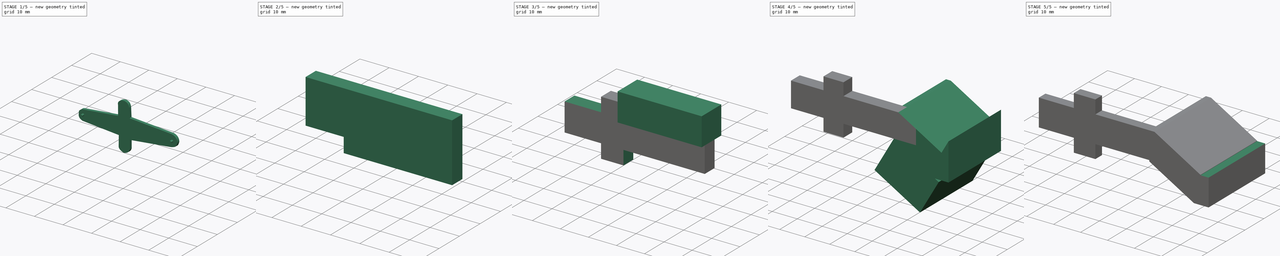
[diagram: build sequence overview — one tinted view per stage of 5, left to right]
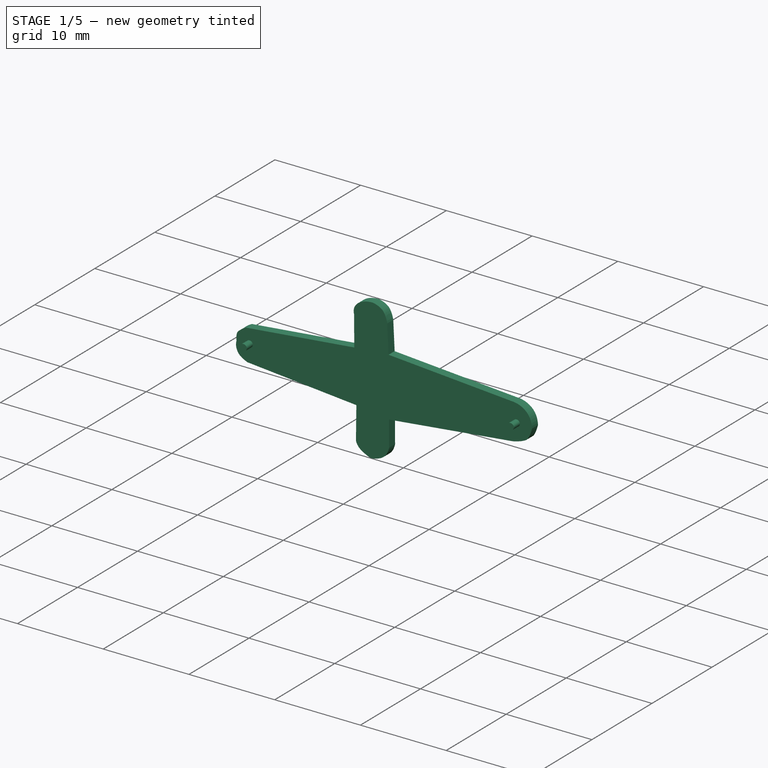
[diagram: stage 1 of 5 — iso view after this stage's code; geometry added in this stage tinted green]
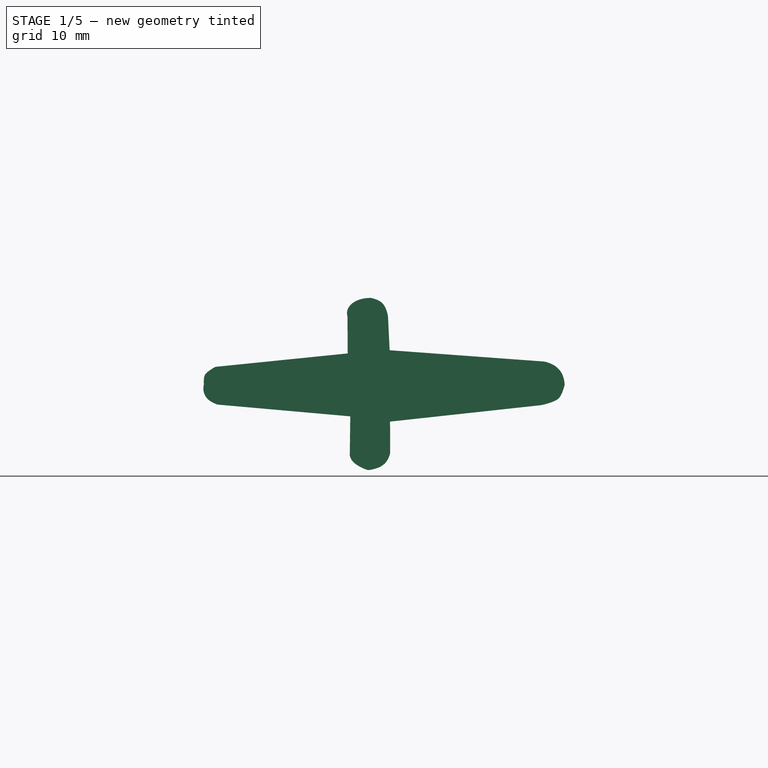
[diagram: stage 1 of 5 — front view after this stage's code; geometry added in this stage tinted green]
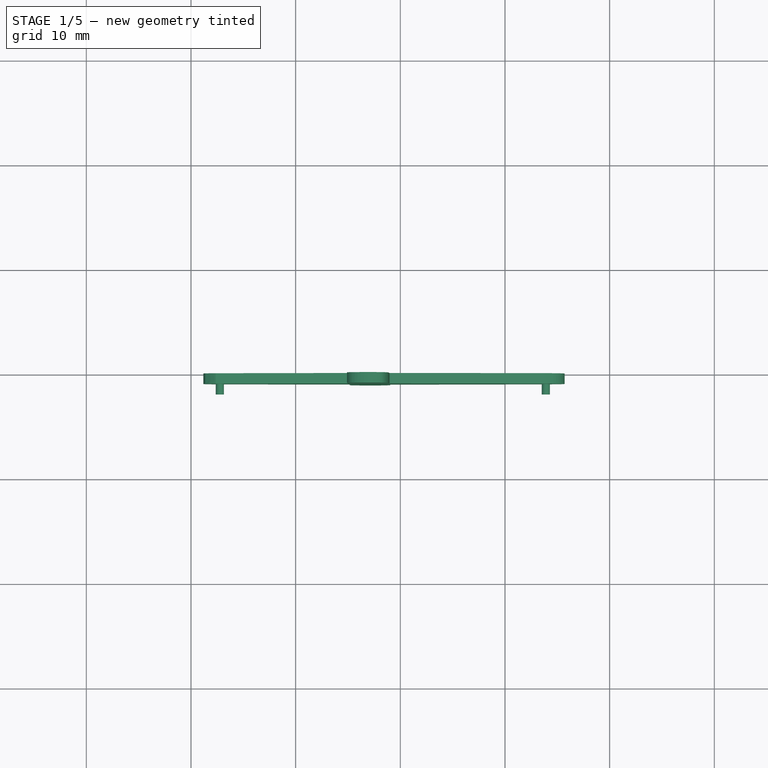
[diagram: stage 1 of 5 — top view after this stage's code; geometry added in this stage tinted green]
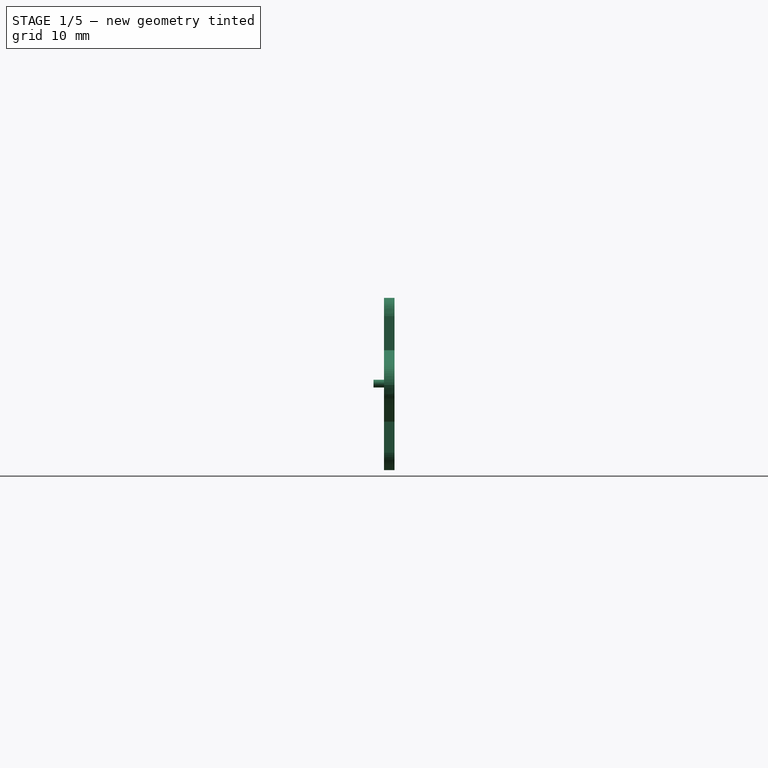
[diagram: stage 1 of 5 — right view after this stage's code; geometry added in this stage tinted green]
FCSTD DOCUMENT  (FreeCAD 0.20R29177 +233 (Git))
Label: pieza_union_sin_aspa
License: Creative Commons Attribution-ShareAlike
LicenseURL: http://creativecommons.org/licenses/by-sa/4.0/
objects: Part::Box×10, Part::Cut×10, Part::Extrusion×4, Part::Feature×3, Part::Fuse×2, Sketcher::SketchObject×1, Part::MultiFuse×1
note: 31 computed .brp shape members not serialized (recipe doc carries the construction recipe); baked Part::Feature solids carry a one-line shape summary decoded from their .brp

FEATURE [Part::Feature] circle1173
  Placement = pos=(80.8508,-13.1887,0) rot=(0,0,1;0rad)
  shape: bbox 0.8152 x 0.9368 x 1.995e-06 mm, 0 faces, 0 solids (baked)
FEATURE [Part::Extrusion] Extrude006
  Base = -> circle1173
  Dir = (0,0,1)
  DirMode = 2
  FaceMakerClass = Part::FaceMakerBullseye
  LengthFwd = 2
  LengthRev = 0
  Placement = pos=(22.5,0,0) rot=(0,0,1;0rad)
  Solid = true
  Symmetric = false
FEATURE [Part::Feature] circle1174
  Placement = pos=(80.8508,-10.0656,0) rot=(0,0,1;0rad)
  shape: bbox 0.8152 x 0.9368 x 1.995e-06 mm, 0 faces, 0 solids (baked)
FEATURE [Part::Extrusion] Extrude005
  Base = -> circle1174
  Dir = (0,0,1)
  DirMode = 2
  FaceMakerClass = Part::FaceMakerBullseye
  LengthFwd = 2
  LengthRev = 0
  Placement = pos=(22.5,0,0) rot=(0,0,1;0rad)
  Solid = true
  Symmetric = false
FEATURE [Part::Feature] path284
  shape: bbox 16.5 x 34.62 x 2e-07 mm, 0 faces, 0 solids (baked)
FEATURE [Part::Extrusion] Extrude004
  Base = -> path284
  Dir = (0,0,1)
  DirMode = 0
  FaceMakerClass = Part::FaceMakerBullseye
  LengthFwd = 1
  LengthRev = 0
  Solid = true
  Symmetric = false
FEATURE [Part::Fuse] Fusion002
  Base = -> Extrude004
  Tool = -> Extrude005
FEATURE [Part::Fuse] Fusion003
  Base = -> Fusion002
  Placement = pos=(46,2.9e-14,98) rot=(0.57735,0.57735,-0.57735;2.0944rad)
  Tool = -> Extrude006
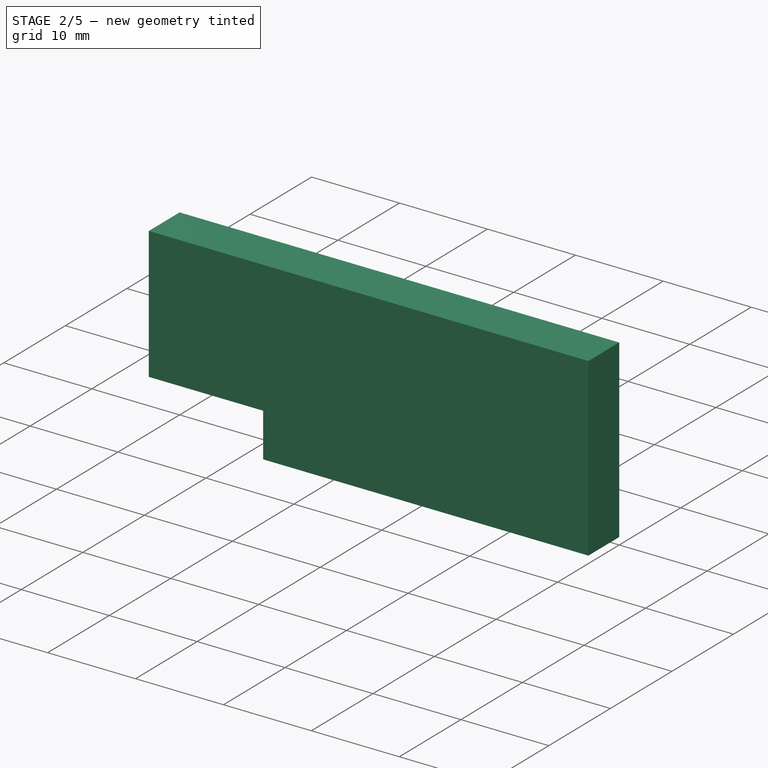
[diagram: stage 2 of 5 — iso view after this stage's code; geometry added in this stage tinted green]
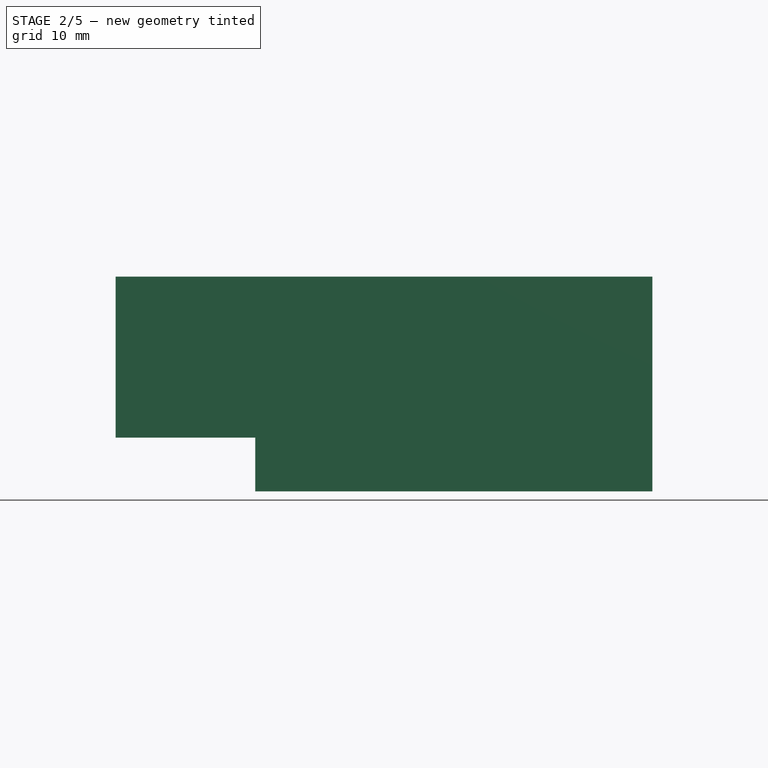
[diagram: stage 2 of 5 — front view after this stage's code; geometry added in this stage tinted green]
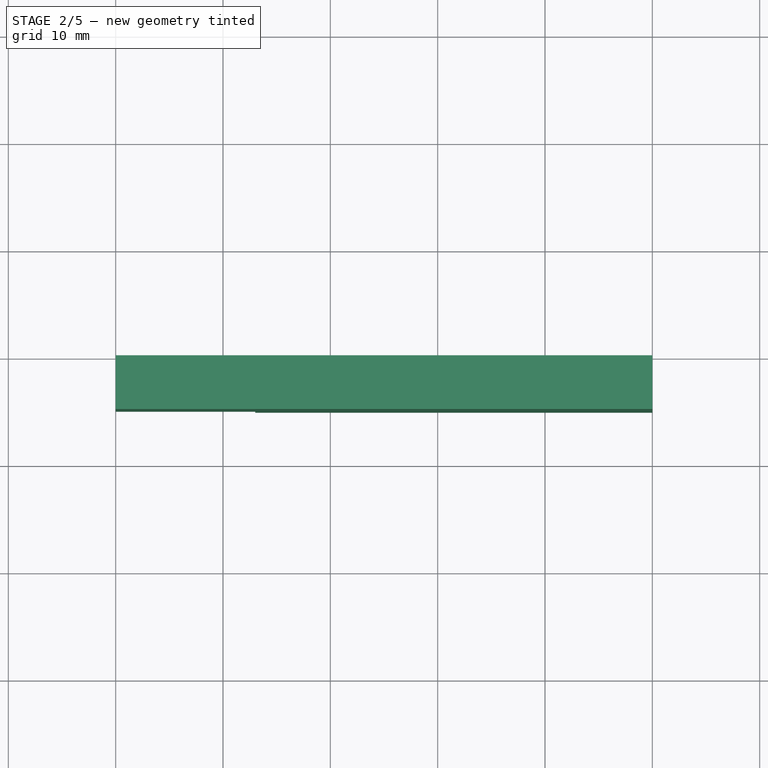
[diagram: stage 2 of 5 — top view after this stage's code; geometry added in this stage tinted green]
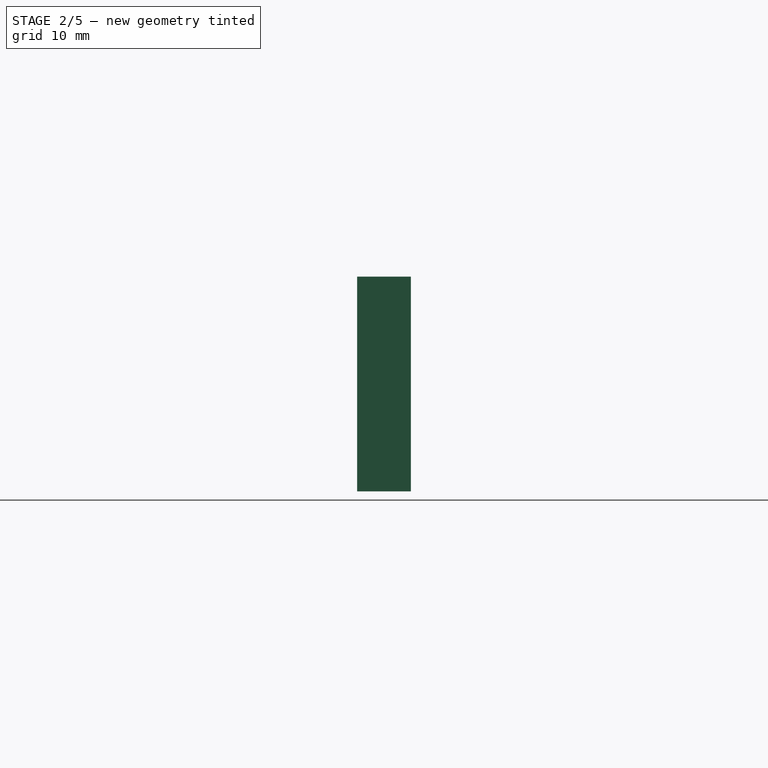
[diagram: stage 2 of 5 — right view after this stage's code; geometry added in this stage tinted green]
FEATURE [Part::Box] Box001  label="Cubo001"
  AttacherType = Attacher::AttachEngine3D
  Height = 30
  Length = 30
  Placement = pos=(-44,-10,19) rot=(0,0,1;0rad)
  Width = 30
FEATURE [Part::Box] Box002  label="Cubo002"
  AttacherType = Attacher::AttachEngine3D
  Height = 10
  Length = 15
  Placement = pos=(-82,-17,15) rot=(0,0,1;0rad)
  Width = 10
FEATURE [Sketcher::SketchObject] Sketch003
  FullyConstrained = true
  MapMode = 2
  sketch-geometry (6):
    g0: LineSegment StartX=0 StartY=0 StartZ=0 EndX=0 EndY=-5 EndZ=0
    g1: LineSegment StartX=0 StartY=-5 StartZ=0 EndX=50 EndY=-5 EndZ=0
    g2: LineSegment StartX=50 StartY=-5 StartZ=0 EndX=50 EndY=15 EndZ=0
    g3: LineSegment StartX=50 StartY=15 StartZ=0 EndX=45 EndY=15 EndZ=0
    g4: LineSegment StartX=45 StartY=15 StartZ=0 EndX=45 EndY=0 EndZ=0
    g5: LineSegment StartX=45 StartY=0 StartZ=0 EndX=0 EndY=0 EndZ=0
  constraints (17):
    c: Coincident(g-1,g0)
    c: PointOnObject(g0,g-2)
    c: Coincident(g0,g1)
    c: Horizontal(g1)
    c: Coincident(g1,g2)
    c: Vertical(g2)
    c: Coincident(g2,g3)
    c: Horizontal(g3)
    c: Coincident(g3,g4)
    c: PointOnObject(g4,g-1)
    c: Vertical(g4)
    c: Coincident(g4,g5)
    c: Coincident(g5,g0)
    c: Distance(g1) = 50
    c: Distance(g0) = 5
    c: Distance(g3) = 5
    c: Distance(g4) = 15
FEATURE [Part::Extrusion] Extrude007
  Base = -> Sketch003
  Dir = (0,0,1)
  DirMode = 2
  FaceMakerClass = Part::FaceMakerBullseye
  LengthFwd = 20
  LengthRev = 0
  Solid = true
  Symmetric = false
FEATURE [Part::Cut] Cut003  label="agarre"
  Base = -> Extrude007
  Placement = pos=(-80,-10,20) rot=(0,0,1;0rad)
  Tool = -> Fusion003
FEATURE [Part::Cut] Cut004
  Base = -> Cut003
  Tool = -> Box001
FEATURE [Part::Cut] Cut005
  Base = -> Cut004
  Tool = -> Box002
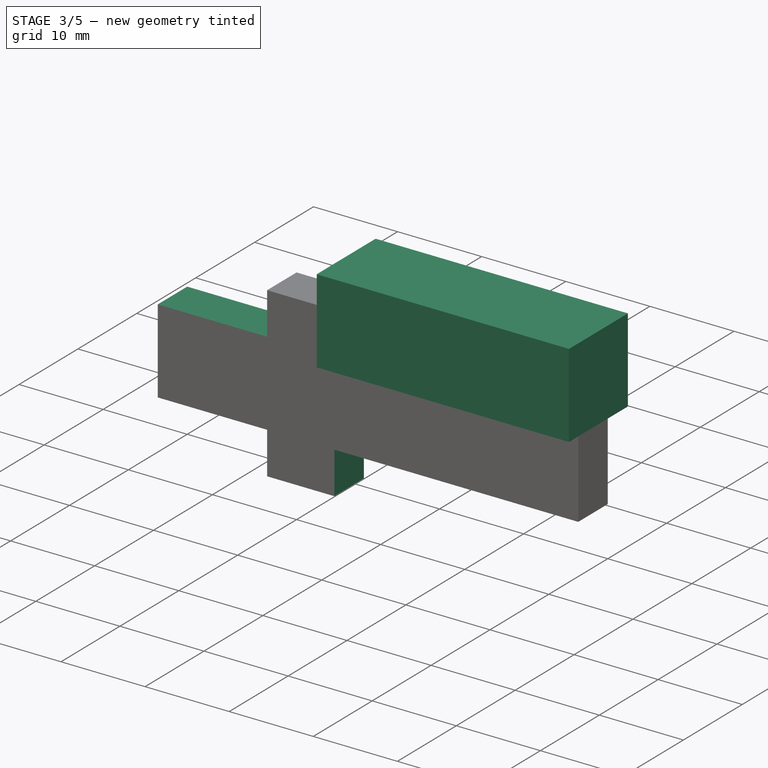
[diagram: stage 3 of 5 — iso view after this stage's code; geometry added in this stage tinted green]
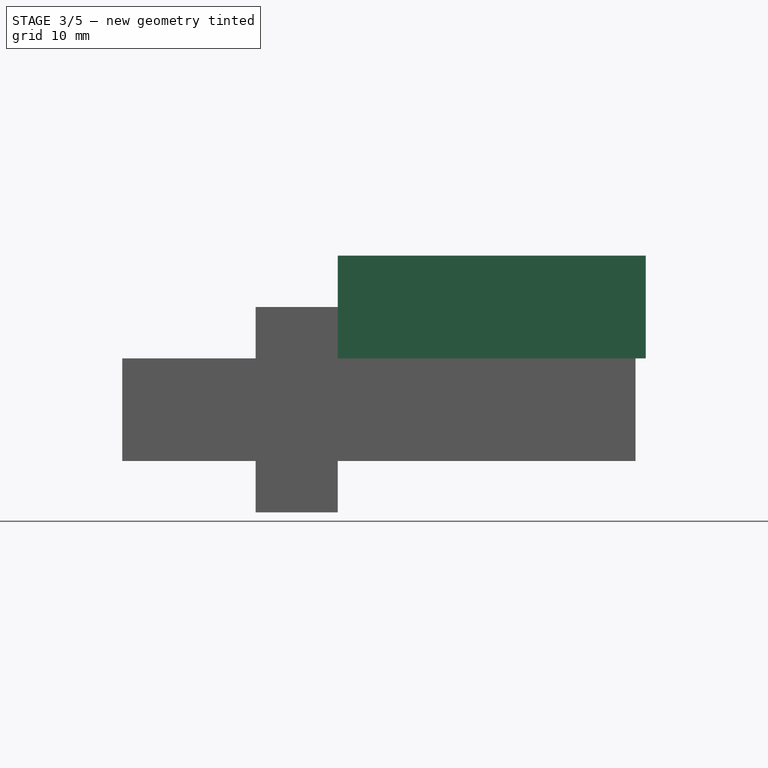
[diagram: stage 3 of 5 — front view after this stage's code; geometry added in this stage tinted green]
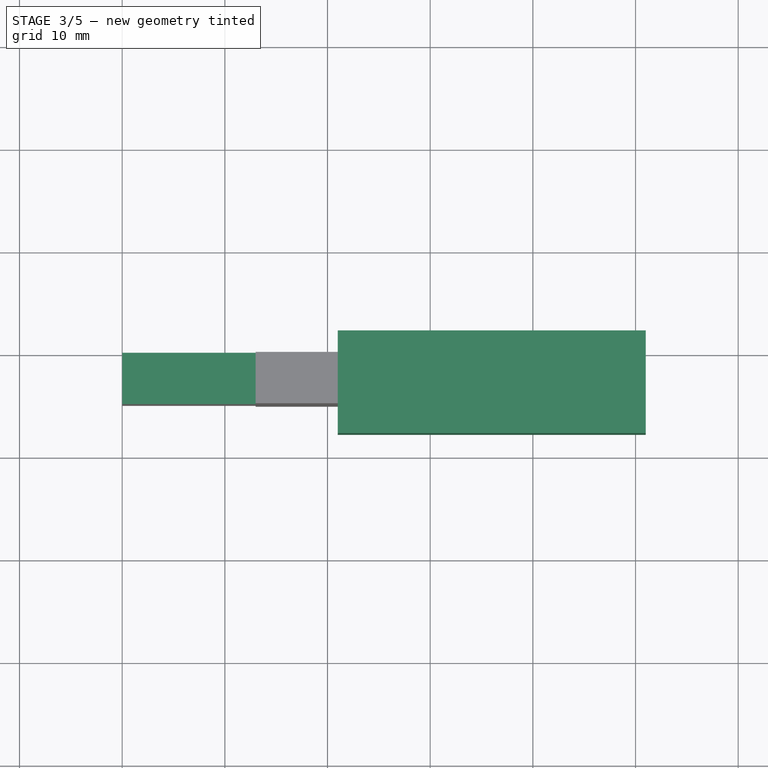
[diagram: stage 3 of 5 — top view after this stage's code; geometry added in this stage tinted green]
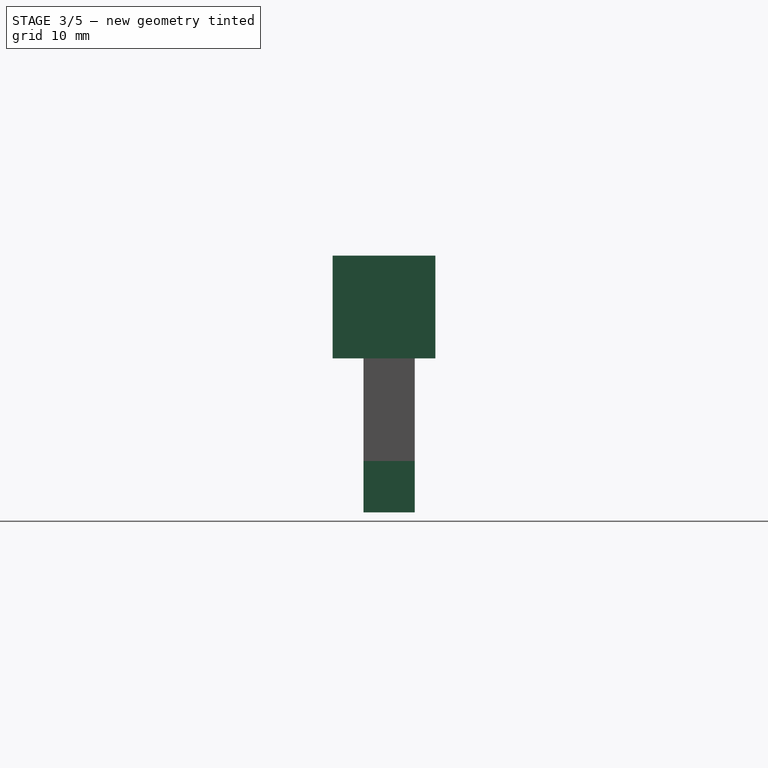
[diagram: stage 3 of 5 — right view after this stage's code; geometry added in this stage tinted green]
FEATURE [Part::Box] Box003  label="Cubo003"
  AttacherType = Attacher::AttachEngine3D
  Height = 10
  Length = 15
  Placement = pos=(-82,-17,35) rot=(0,0,1;0rad)
  Width = 10
FEATURE [Part::Box] Box004  label="Cubo004"
  AttacherType = Attacher::AttachEngine3D
  Height = 10
  Length = 30
  Placement = pos=(-59,-18,15) rot=(0,0,1;0rad)
  Width = 10
FEATURE [Part::Box] Box005  label="Cubo005"
  AttacherType = Attacher::AttachEngine3D
  Height = 10
  Length = 30
  Placement = pos=(-59,-18,35) rot=(0,0,1;0rad)
  Width = 10
FEATURE [Part::Cut] Cut006
  Base = -> Cut005
  Tool = -> Box003
FEATURE [Part::Cut] Cut007
  Base = -> Cut006
  Tool = -> Box004
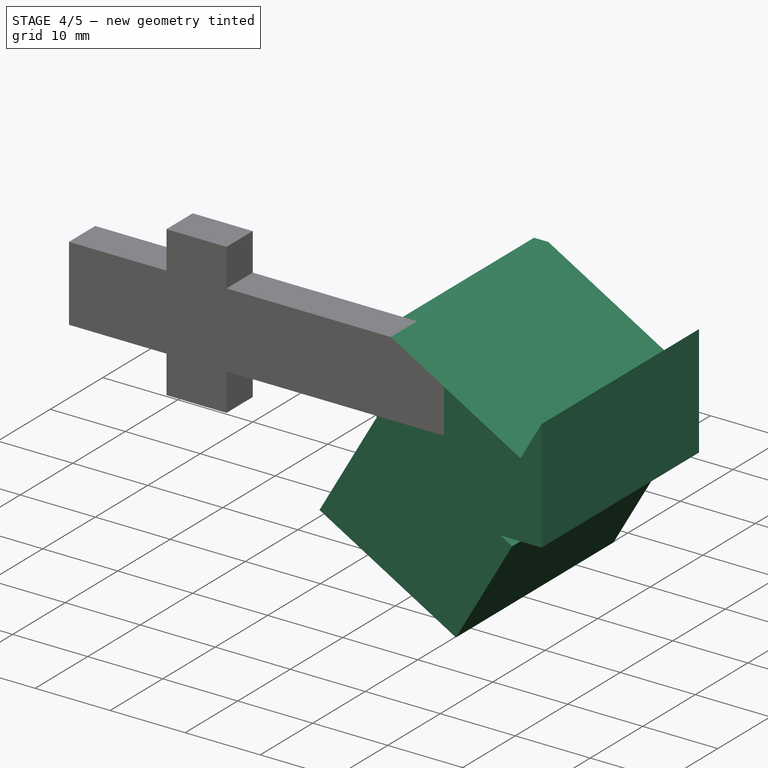
[diagram: stage 4 of 5 — iso view after this stage's code; geometry added in this stage tinted green]
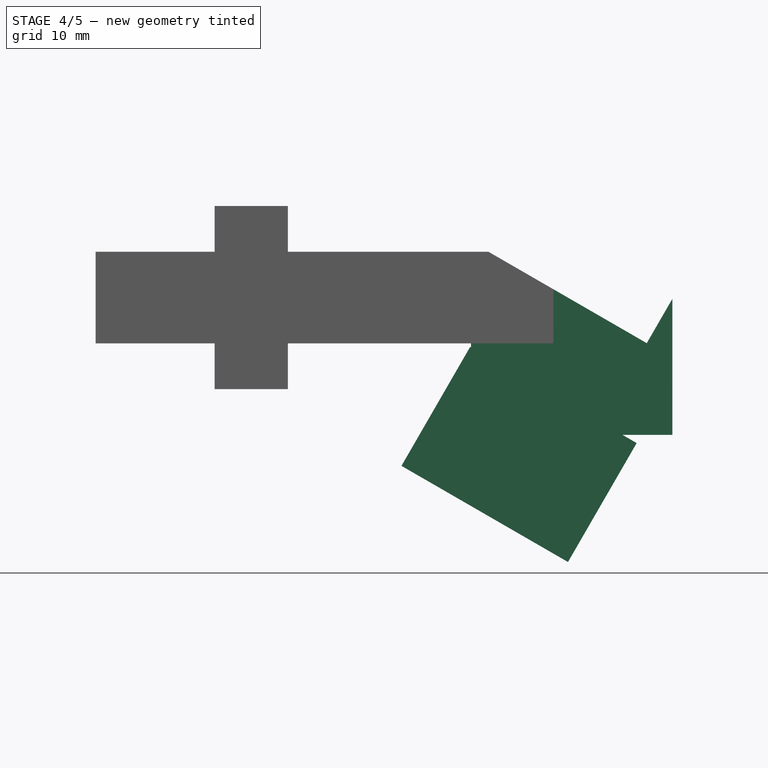
[diagram: stage 4 of 5 — front view after this stage's code; geometry added in this stage tinted green]
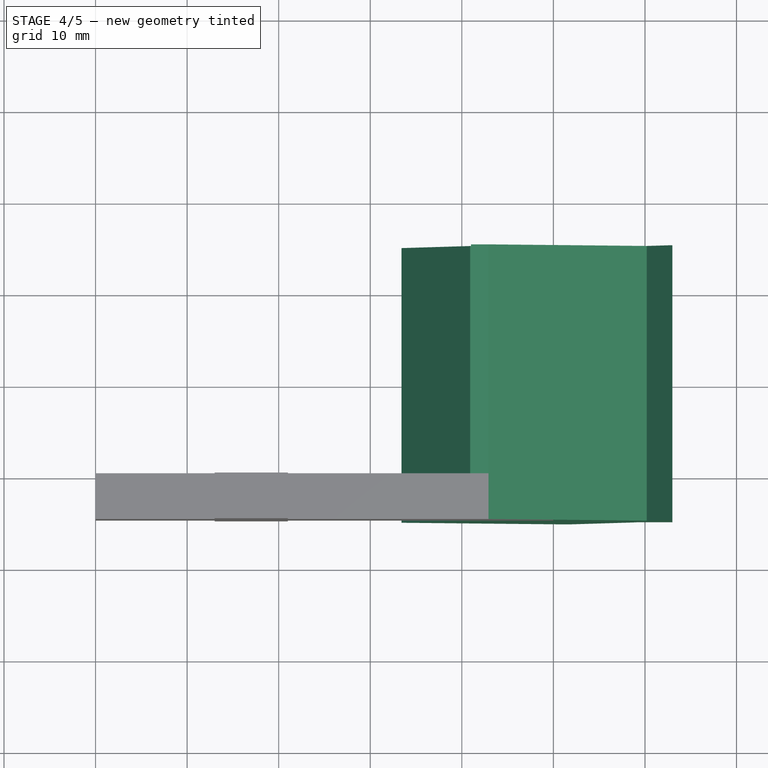
[diagram: stage 4 of 5 — top view after this stage's code; geometry added in this stage tinted green]
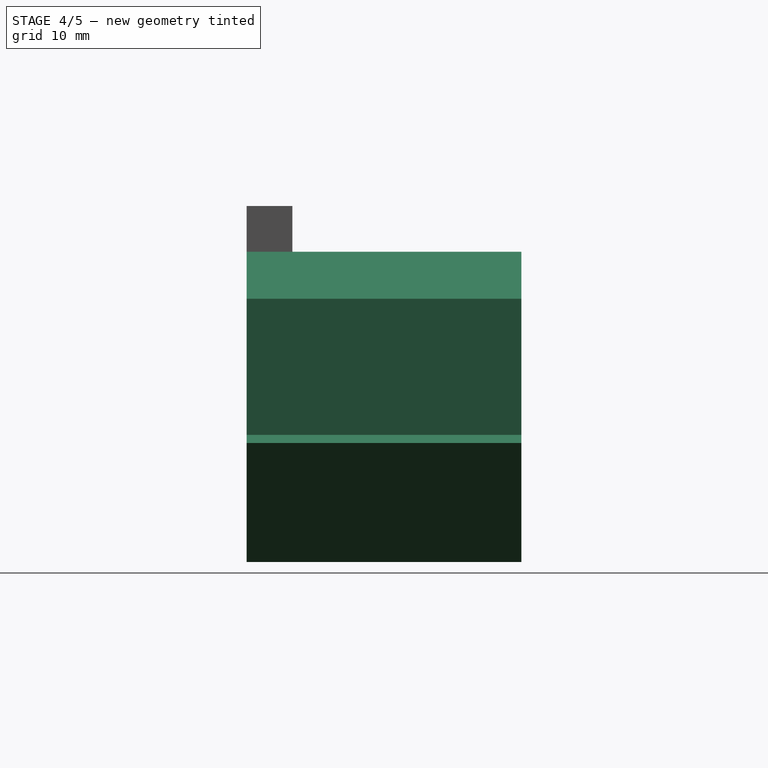
[diagram: stage 4 of 5 — right view after this stage's code; geometry added in this stage tinted green]
FEATURE [Part::Box] Box006  label="Cubo006"
  AttacherType = Attacher::AttachEngine3D
  Height = 20
  Length = 22
  Placement = pos=(-39,-15,15) rot=(0,0,1;0rad)
  Width = 30
FEATURE [Part::Box] Box007  label="Cubo007"
  AttacherType = Attacher::AttachEngine3D
  Height = 15
  Length = 21
  Placement = pos=(-37.99,-15,35.52) rot=(0,1,0;0.523599rad)
  Width = 30
FEATURE [Part::Box] Box008  label="Cubo008"
  AttacherType = Attacher::AttachEngine3D
  Height = 15
  Length = 21
  Placement = pos=(-46.5929,-15,11.6194) rot=(0,1,0;0.523599rad)
  Width = 30
FEATURE [Part::Cut] Cut008
  Base = -> Cut007
  Tool = -> Box005
FEATURE [Part::MultiFuse] Fusion004
  Shapes = -> [Cut008,Box006]
FEATURE [Part::Cut] Cut009
  Base = -> Fusion004
  Tool = -> Box007
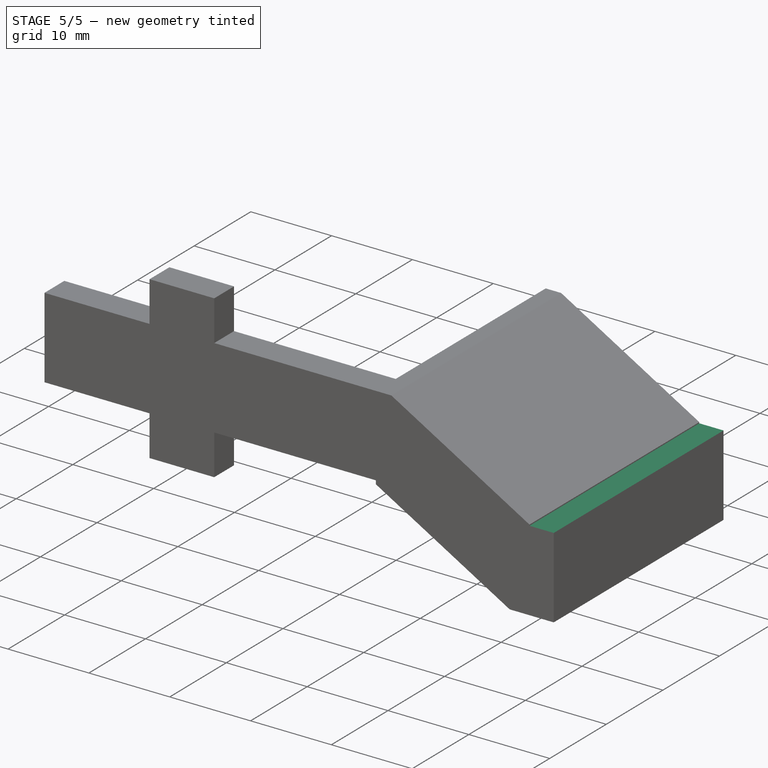
[diagram: stage 5 of 5 — iso view after this stage's code; geometry added in this stage tinted green]
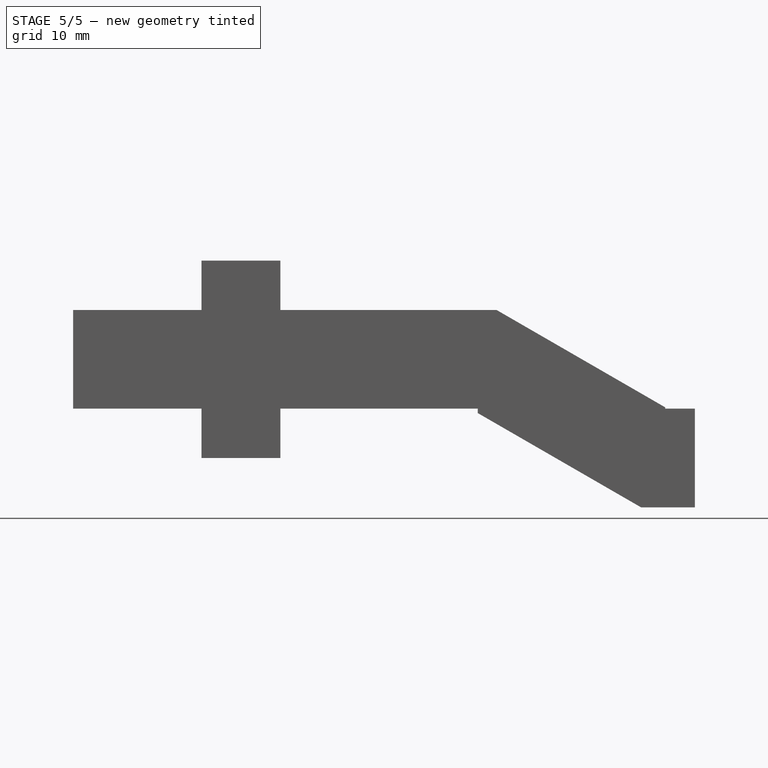
[diagram: stage 5 of 5 — front view after this stage's code; geometry added in this stage tinted green]
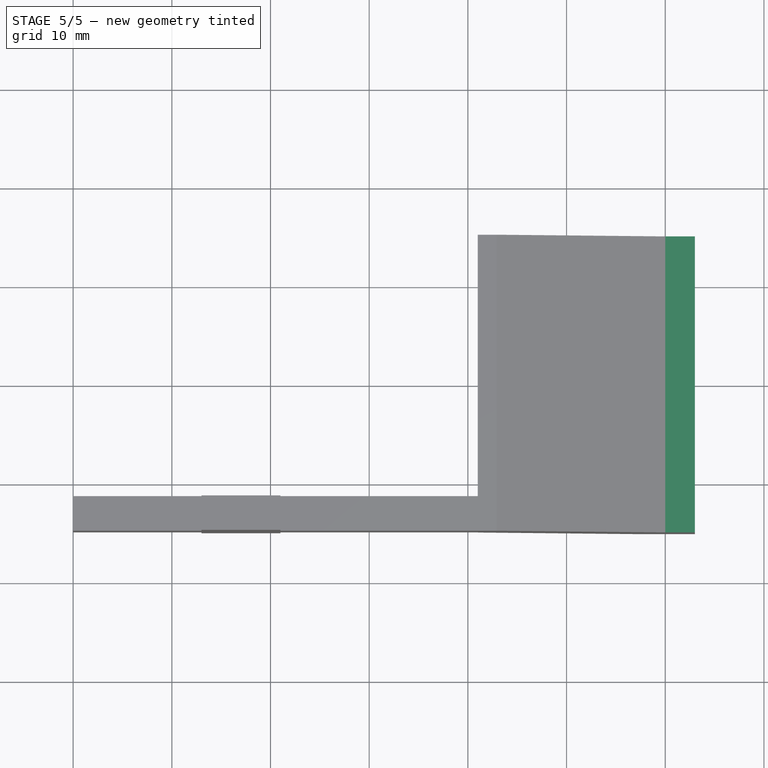
[diagram: stage 5 of 5 — top view after this stage's code; geometry added in this stage tinted green]
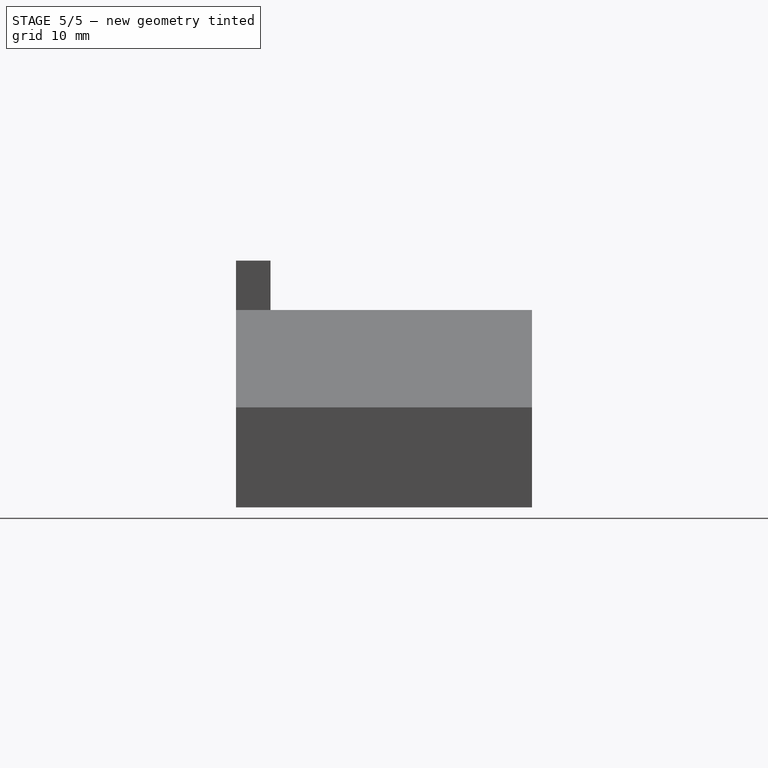
[diagram: stage 5 of 5 — right view after this stage's code; geometry added in this stage tinted green]
FEATURE [Part::Box] Box009  label="Cubo009"
  AttacherType = Attacher::AttachEngine3D
  Height = 10
  Length = 10
  Placement = pos=(-20,-17,25) rot=(0,0,1;0rad)
  Width = 40
FEATURE [Part::Box] Box010  label="Cubo010"
  AttacherType = Attacher::AttachEngine3D
  Height = 24
  Length = 43
  Placement = pos=(-82,-11.5,17.5) rot=(0,0,1;0rad)
  Width = 4
FEATURE [Part::Cut] Cut010
  Base = -> Cut009
  Tool = -> Box008
FEATURE [Part::Cut] Cut011  label="agarre001"
  Base = -> Cut010
  Tool = -> Box009
FEATURE [Part::Cut] Cut012
  Base = -> Cut011
  Tool = -> Box010
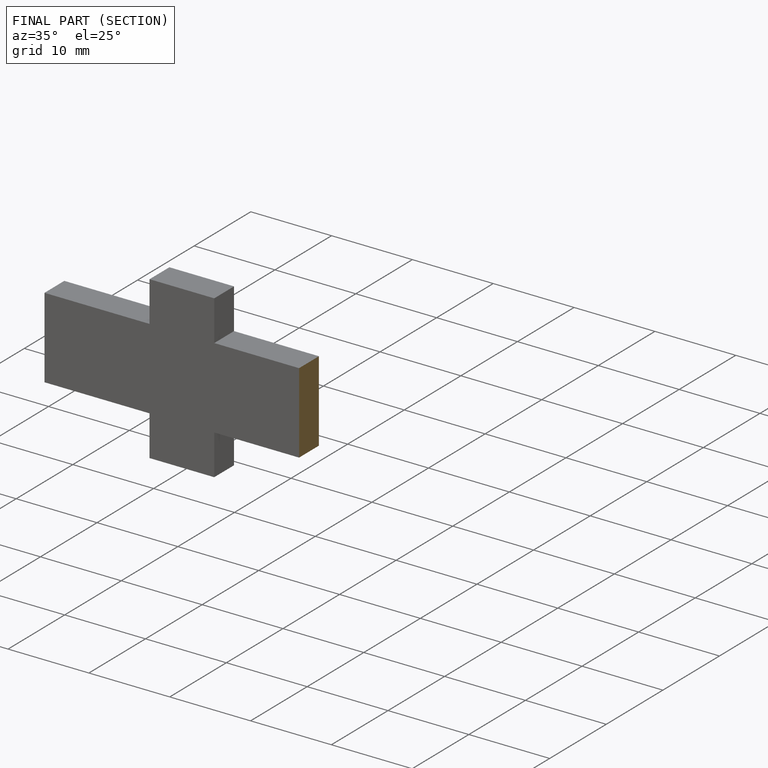
[diagram: finished part — half-section view (interior)]
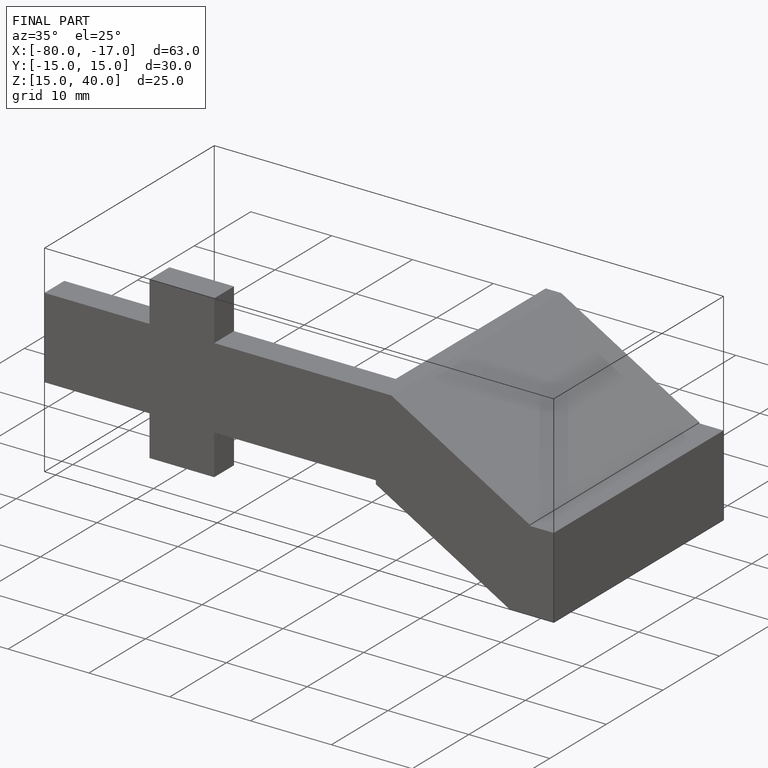
[diagram: finished part — iso view with bounding-box wireframe]
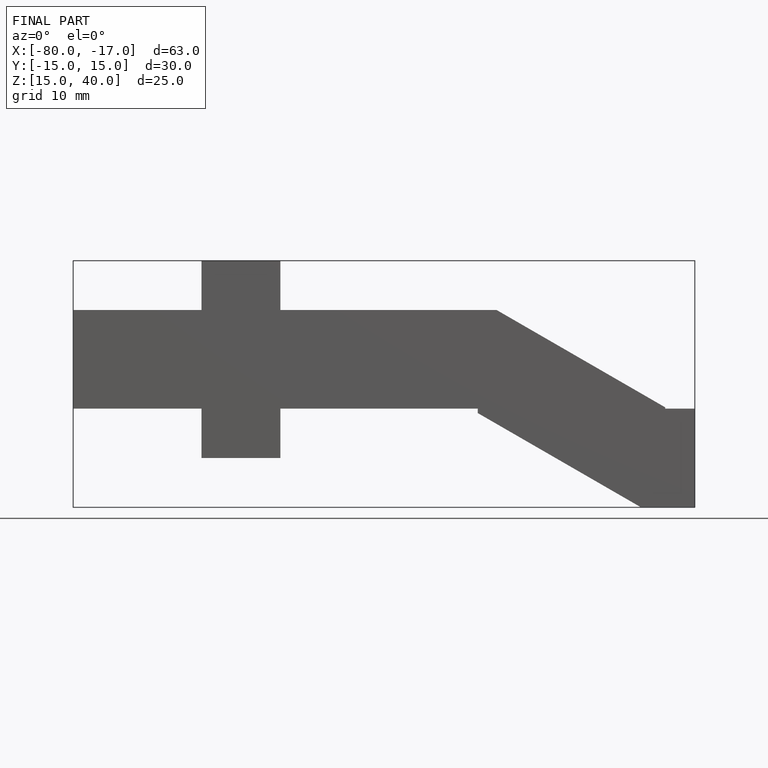
[diagram: finished part — front view with bounding-box wireframe]
